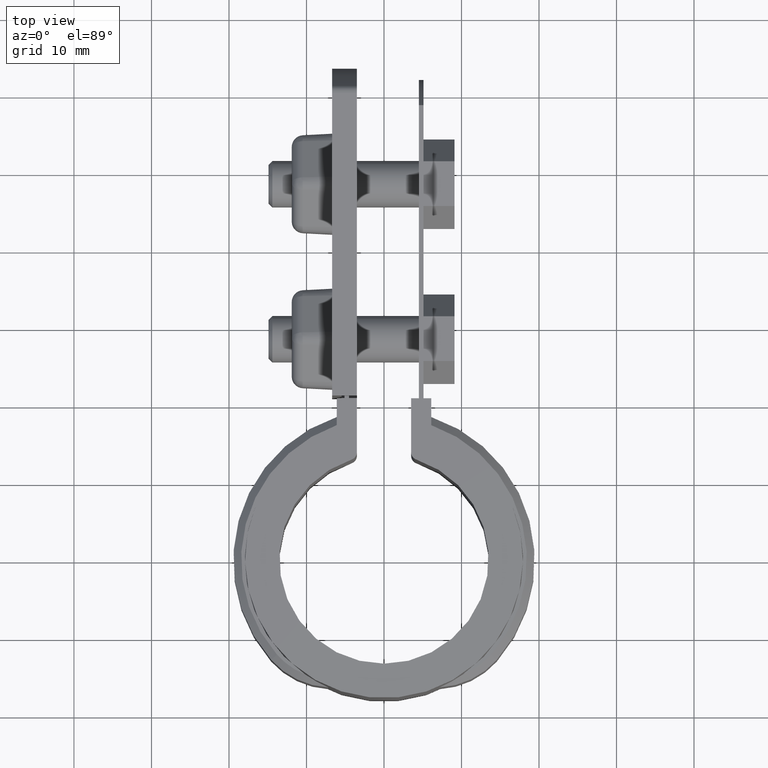
[diagram: clean part render]
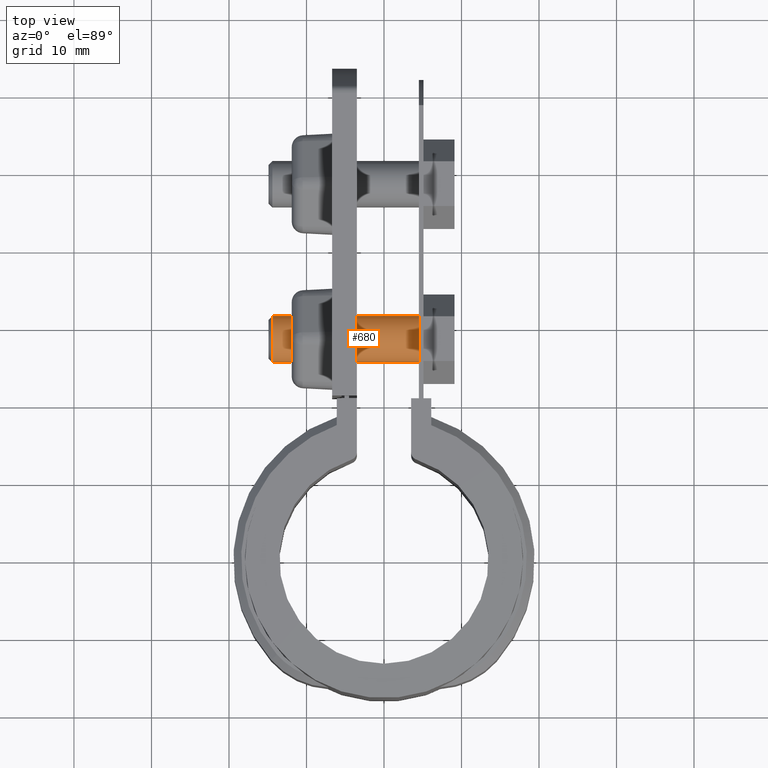
[diagram: same view with one face highlighted and labeled with its STEP entity id]
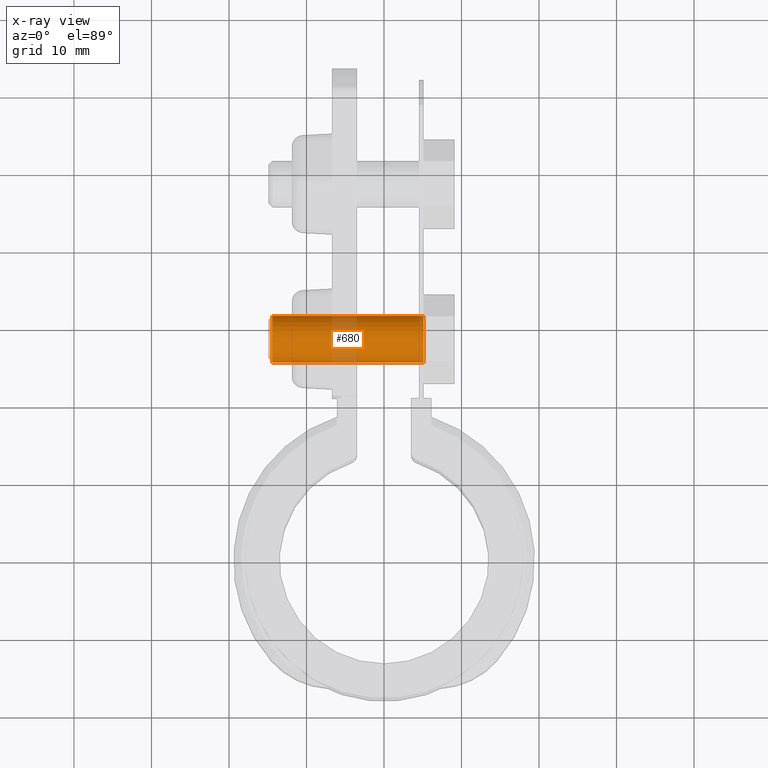
[diagram: x-ray of the same camera — body ghosted, the highlighted face saturated]
A machine part, top view. The second image highlights one B-rep face of the part: STEP entity #680.
The next image is the same camera in x-ray: the body ghosted, the highlighted face saturated — about 18% of this face is hidden behind the body in this view.
In plain terms, the highlighted cylindrical surface (bore or boss wall) has radius 3 mm, axis along (-1, 0, 0).
Its self-contained STEP definition (entity closure, byte-faithful):
#680 = ADVANCED_FACE( '', ( #1383, #1384 ), #1385, .T. );
#1383 = FACE_OUTER_BOUND( '', #2759, .T. );
#1384 = FACE_OUTER_BOUND( '', #2760, .T. );
#1385 = CYLINDRICAL_SURFACE( '', #2761, 2.99999999999998 );
#2759 = EDGE_LOOP( '', ( #6060 ) );
#2760 = EDGE_LOOP( '', ( #6061 ) );
#2761 = AXIS2_PLACEMENT_3D( '', #6062, #6063, #6064 );
#6060 = ORIENTED_EDGE( '', *, *, #7074, .F. );
#6061 = ORIENTED_EDGE( '', *, *, #7075, .T. );
#6062 = CARTESIAN_POINT( '', ( 13.5487843911358, 28.6042845476283, -12.4999999999998 ) );
#6063 = DIRECTION( '', ( -1.00000000000000, 9.04172709874369E-054, 5.22024357439878E-054 ) );
#6064 = DIRECTION( '', ( 1.04404871487976E-053, 0.866025403784439, 0.500000000000000 ) );
#7074 = EDGE_CURVE( '', #8562, #8562, #8563, .T. );
#7075 = EDGE_CURVE( '', #8564, #8564, #8565, .T. );
#8562 = VERTEX_POINT( '', #12086 );
#8563 = CIRCLE( '', #12087, 2.99999999999998 );
#8564 = VERTEX_POINT( '', #12088 );
#8565 = CIRCLE( '', #12089, 2.99999999999998 );
#12086 = CARTESIAN_POINT( '', ( 5.09999999999993, 31.2023607589816, -10.9999999999998 ) );
#12087 = AXIS2_PLACEMENT_3D( '', #13358, #13359, #13360 );
#12088 = CARTESIAN_POINT( '', ( -14.4000000000001, 26.0062083362750, -13.9999999999998 ) );
#12089 = AXIS2_PLACEMENT_3D( '', #13361, #13362, #13363 );
#13358 = CARTESIAN_POINT( '', ( 5.09999999999993, 28.6042845476283, -12.4999999999998 ) );
#13359 = DIRECTION( '', ( 1.00000000000000, -9.04172709874369E-054, -5.22024357439878E-054 ) );
#13360 = DIRECTION( '', ( 1.04404871487976E-053, 0.866025403784439, 0.500000000000000 ) );
#13361 = CARTESIAN_POINT( '', ( -14.4000000000001, 28.6042845476283, -12.4999999999998 ) );
#13362 = DIRECTION( '', ( 1.00000000000000, -9.04172709874369E-054, -5.22024357439878E-054 ) );
#13363 = DIRECTION( '', ( -1.04404871487976E-053, -0.866025403784439, -0.500000000000000 ) );